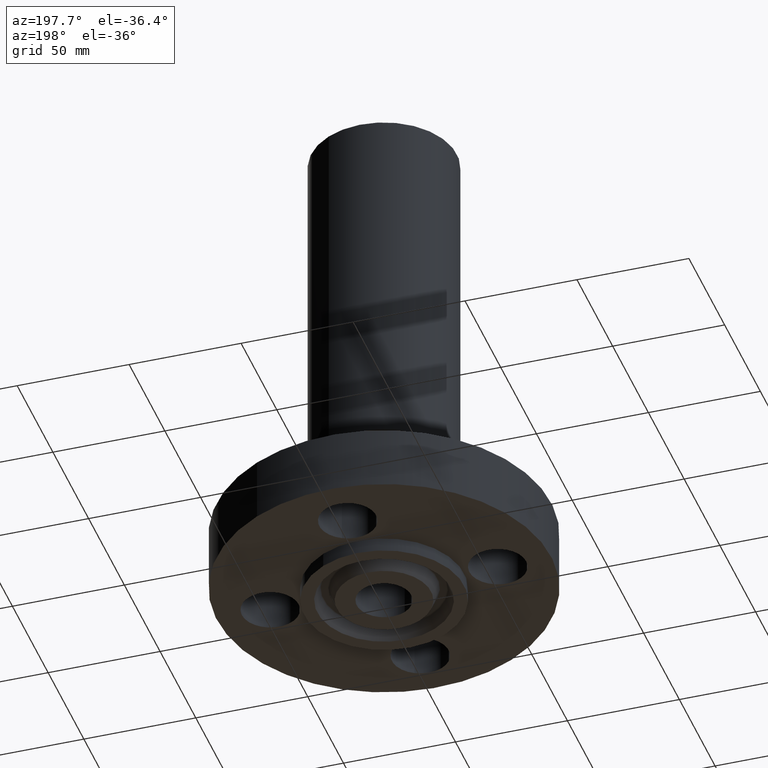
[diagram: clean part render]
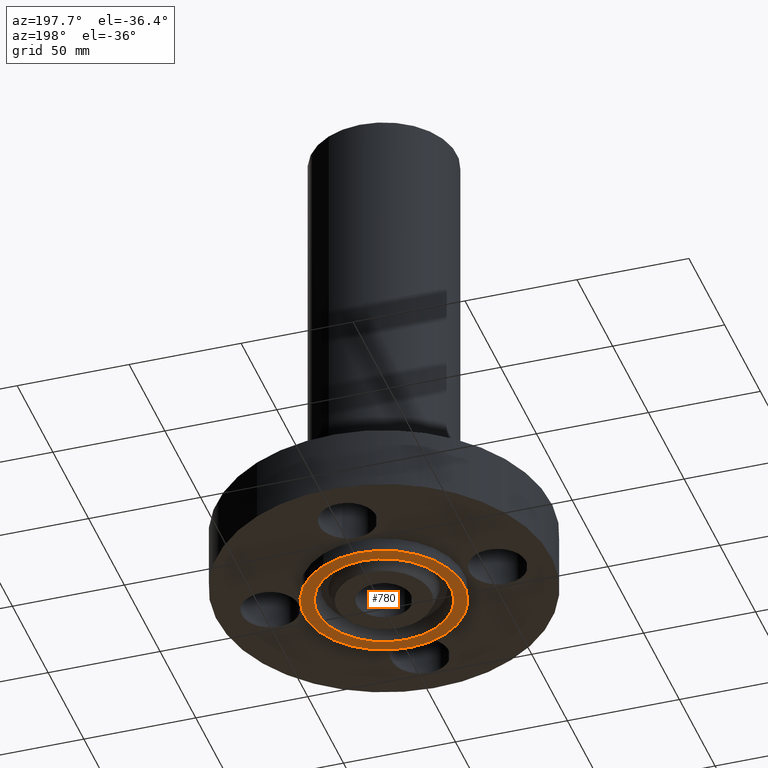
[diagram: same view with one face highlighted and labeled with its STEP entity id]
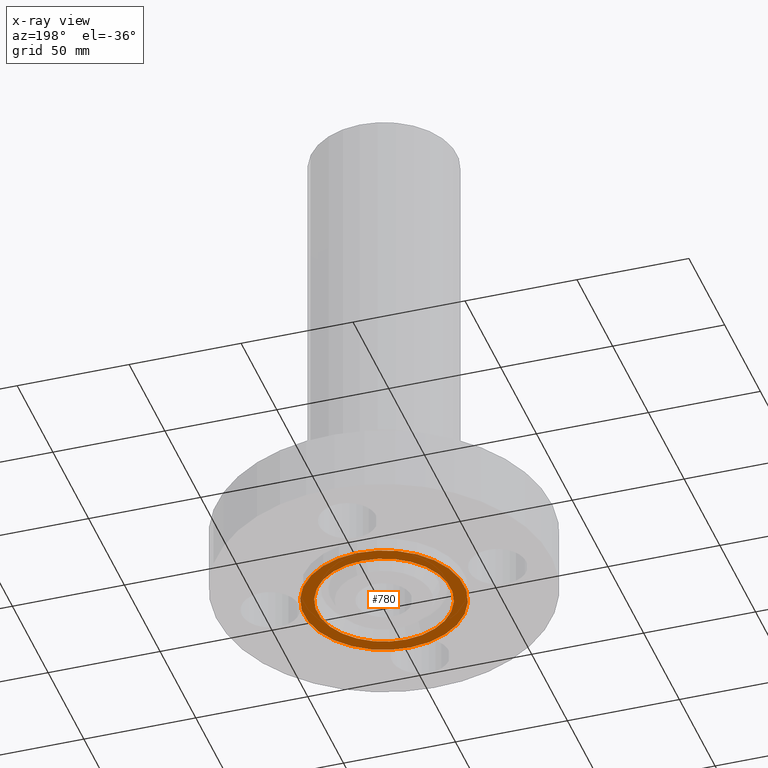
[diagram: x-ray of the same camera — body ghosted, the highlighted face saturated]
A machine part, auxiliary view. The second image highlights one B-rep face of the part: STEP entity #780.
The next image is the same camera in x-ray: the body ghosted, the highlighted face saturated — about 0% of this face is hidden behind the body in this view.
In plain terms, the highlighted planar face has unit normal (0, 0, -1).
Its self-contained STEP definition (entity closure, byte-faithful):
#538=AXIS2_PLACEMENT_3D('Plane Axis2P3D',#535,#536,#537) ;
#729=AXIS2_PLACEMENT_3D('Circle Axis2P3D',#727,#728,$) ;
#748=AXIS2_PLACEMENT_3D('Circle Axis2P3D',#746,#747,$) ;
#760=AXIS2_PLACEMENT_3D('Circle Axis2P3D',#758,#759,$) ;
#769=AXIS2_PLACEMENT_3D('Circle Axis2P3D',#767,#768,$) ;
#535=CARTESIAN_POINT('Axis2P3D Location',(0.,0.828000000003,-0.250000000001)) ;
#724=CARTESIAN_POINT('Vertex',(-0.561886731246,-1.02852676254,-0.250000000001)) ;
#727=CARTESIAN_POINT('Axis2P3D Location',(0.,0.,-0.250000000001)) ;
#731=CARTESIAN_POINT('Vertex',(0.561886731246,1.02852676254,-0.250000000001)) ;
#746=CARTESIAN_POINT('Axis2P3D Location',(0.,0.,-0.250000000001)) ;
#758=CARTESIAN_POINT('Axis2P3D Location',(0.,0.,-0.250000000001)) ;
#762=CARTESIAN_POINT('Vertex',(-0.67431202005,-1.2343198733,-0.250000000001)) ;
#764=CARTESIAN_POINT('Vertex',(0.67431202005,1.2343198733,-0.250000000001)) ;
#767=CARTESIAN_POINT('Axis2P3D Location',(0.,0.,-0.250000000001)) ;
#536=DIRECTION('Axis2P3D Direction',(0.,0.,-0.0393700787402)) ;
#537=DIRECTION('Axis2P3D XDirection',(0.0393700787402,0.,0.)) ;
#728=DIRECTION('Axis2P3D Direction',(0.,0.,-0.0393700787402)) ;
#747=DIRECTION('Axis2P3D Direction',(0.,0.,-0.0393700787402)) ;
#759=DIRECTION('Axis2P3D Direction',(0.,0.,-0.0393700787402)) ;
#768=DIRECTION('Axis2P3D Direction',(0.,0.,-0.0393700787402)) ;
#773=ORIENTED_EDGE('',*,*,#766,.T.) ;
#774=ORIENTED_EDGE('',*,*,#771,.T.) ;
#777=ORIENTED_EDGE('',*,*,#750,.F.) ;
#778=ORIENTED_EDGE('',*,*,#733,.F.) ;
#779=FACE_BOUND('',#776,.T.) ;
#780=ADVANCED_FACE('PartBody',(#775,#779),#539,.T.) ;
#730=CIRCLE('generated circle',#729,1.172) ;
#749=CIRCLE('generated circle',#748,1.172) ;
#761=CIRCLE('generated circle',#760,1.40650000001) ;
#770=CIRCLE('generated circle',#769,1.40650000001) ;
#733=EDGE_CURVE('',#725,#732,#730,.T.) ;
#750=EDGE_CURVE('',#732,#725,#749,.T.) ;
#766=EDGE_CURVE('',#763,#765,#761,.T.) ;
#771=EDGE_CURVE('',#765,#763,#770,.T.) ;
#772=EDGE_LOOP('',(#773,#774)) ;
#776=EDGE_LOOP('',(#777,#778)) ;
#775=FACE_OUTER_BOUND('',#772,.T.) ;
#539=PLANE('',#538) ;
#725=VERTEX_POINT('',#724) ;
#732=VERTEX_POINT('',#731) ;
#763=VERTEX_POINT('',#762) ;
#765=VERTEX_POINT('',#764) ;